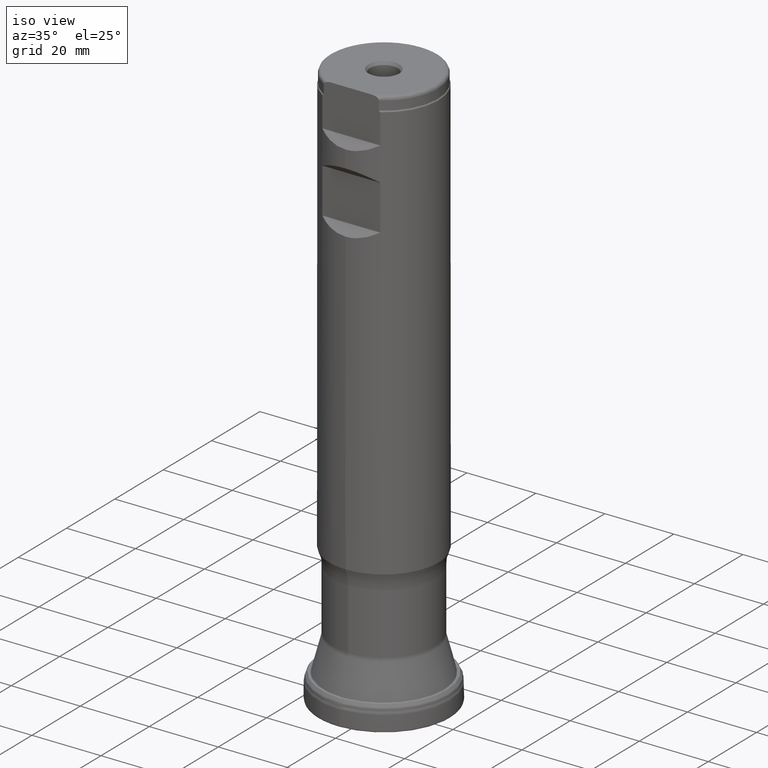
[diagram: clean part render]
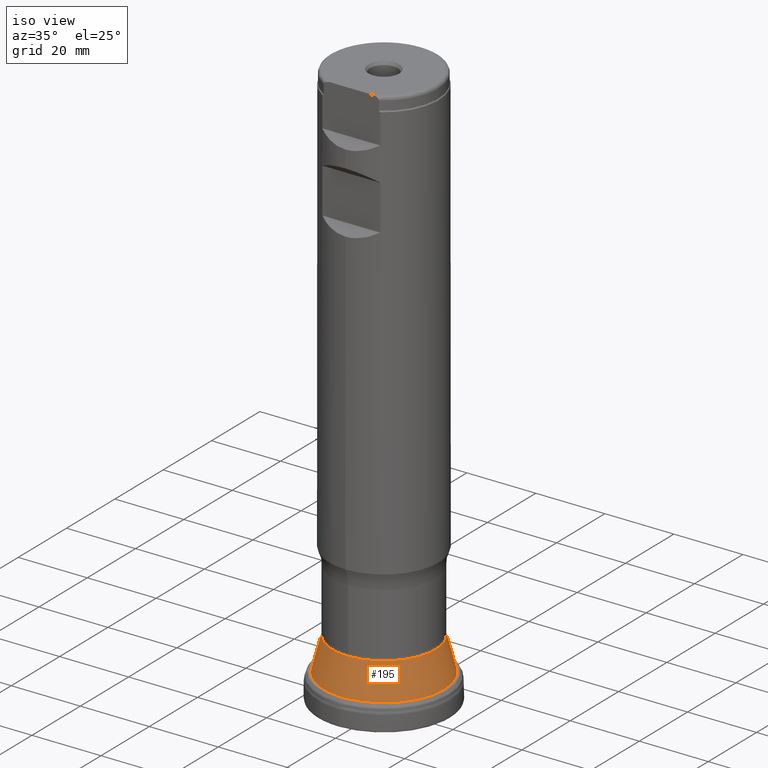
[diagram: same view with one face highlighted and labeled with its STEP entity id]
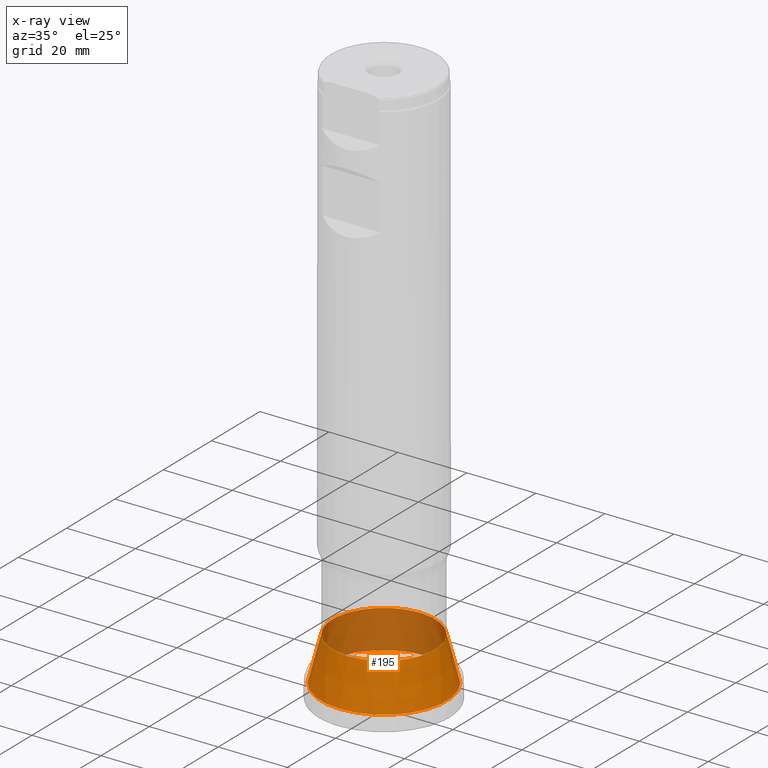
[diagram: x-ray of the same camera — body ghosted, the highlighted face saturated]
A machine part, iso view. The second image highlights one B-rep face of the part: STEP entity #195.
The next image is the same camera in x-ray: the body ghosted, the highlighted face saturated — about 35% of this face is hidden behind the body in this view.
In plain terms, the highlighted conical surface has half-angle 14.5 deg.
Its self-contained STEP definition (entity closure, byte-faithful):
#171=CONICAL_SURFACE('',#836,14.8,14.5);
#195=ADVANCED_FACE('',(#299,#300),#171,.T.);
#258=CIRCLE('',#834,14.8955570788657);
#259=CIRCLE('',#835,18.1615109518296);
#299=FACE_BOUND('',#383,.T.);
#300=FACE_BOUND('',#384,.T.);
#383=EDGE_LOOP('',(#536));
#384=EDGE_LOOP('',(#537));
#536=ORIENTED_EDGE('',*,*,#728,.T.);
#537=ORIENTED_EDGE('',*,*,#729,.T.);
#664=VERTEX_POINT('',#1442);
#665=VERTEX_POINT('',#1444);
#728=EDGE_CURVE('',#664,#664,#258,.T.);
#729=EDGE_CURVE('',#665,#665,#259,.T.);
#834=AXIS2_PLACEMENT_3D('',#1441,#941,#942);
#835=AXIS2_PLACEMENT_3D('',#1443,#943,#944);
#836=AXIS2_PLACEMENT_3D('',#1445,#945,#946);
#941=DIRECTION('',(0.,-1.17145536458252E-15,-1.));
#942=DIRECTION('',(0.,1.,-1.1645912044727E-15));
#943=DIRECTION('',(0.,1.17145536458252E-15,1.));
#944=DIRECTION('',(0.,-1.,1.19395591629041E-15));
#945=DIRECTION('',(0.,-1.17145536458252E-15,-1.));
#946=DIRECTION('',(0.,1.,-1.35774304616717E-15));
#1441=CARTESIAN_POINT('',(0.,1.98388140825533E-14,16.9351856522705));
#1442=CARTESIAN_POINT('',(0.,14.8955570788657,16.9351856522705));
#1443=CARTESIAN_POINT('',(0.,5.0450822700338E-15,4.3066790443456));
#1444=CARTESIAN_POINT('',(0.,-18.1615109518296,4.30667904434563));
#1445=CARTESIAN_POINT('',(0.,2.02716572433918E-14,17.3046774604307));